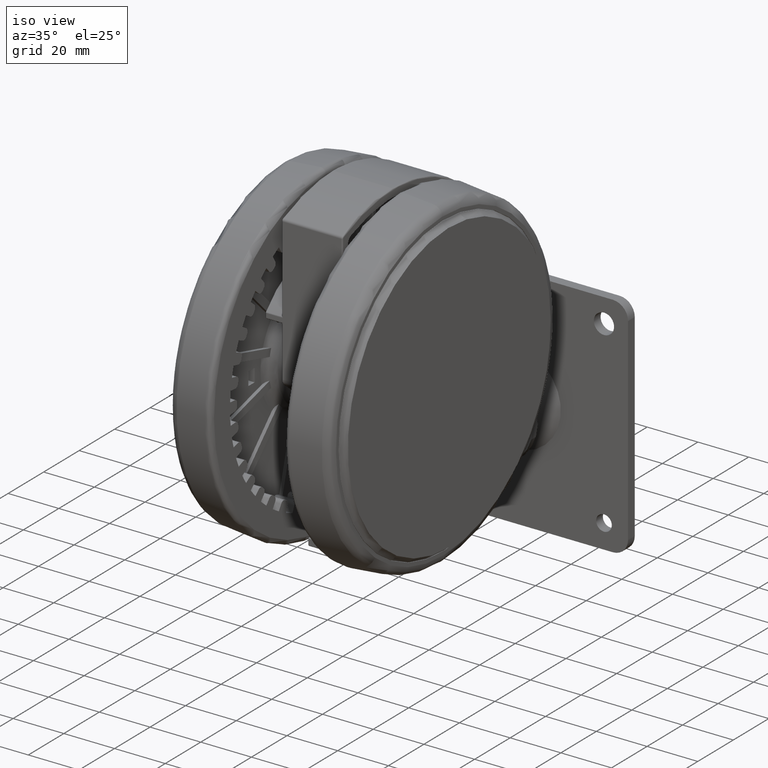
[diagram: clean part render]
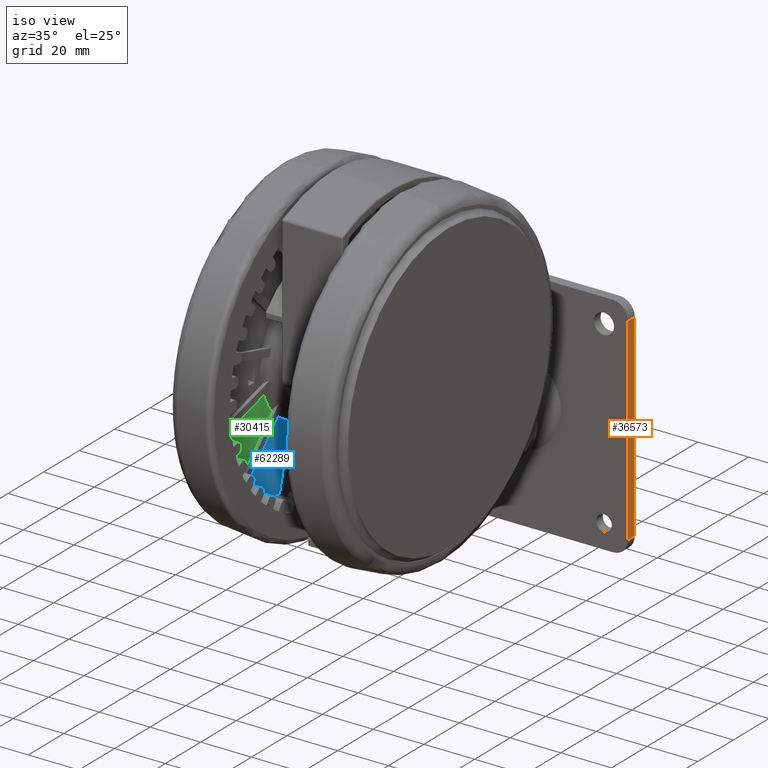
[diagram: same view with three faces highlighted in distinct colors, each labeled with its STEP entity id]
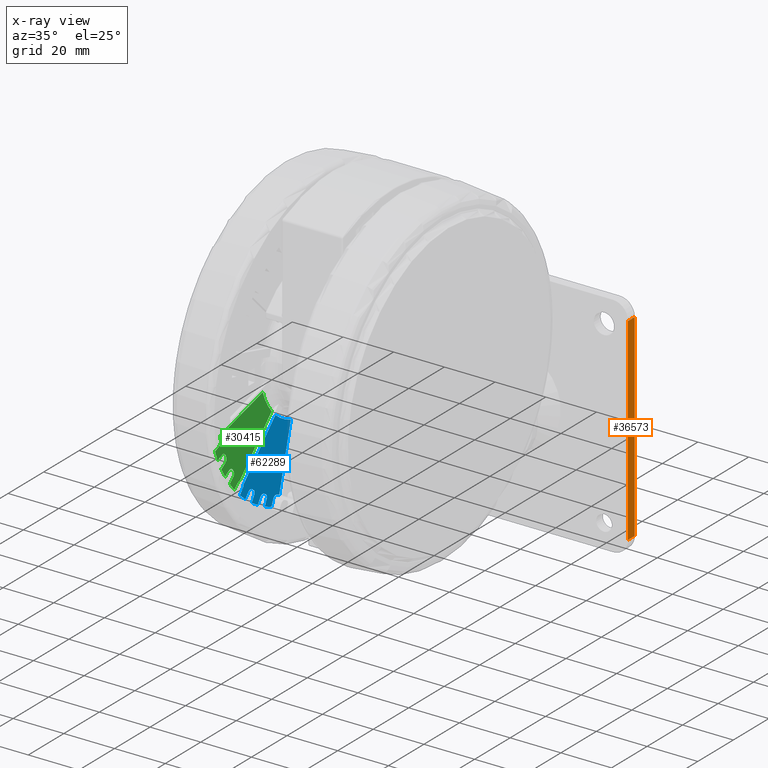
[diagram: x-ray of the same camera — body ghosted, the three highlighted faces saturated]
A machine part, iso view with three faces highlighted in distinct colors.
The next image is the same camera in x-ray (body ghosted, the three faces saturated) — at least one of them is partly hidden behind the body in this view.
Their STEP definitions:

[orange] entity #36573 — the highlighted planar face has unit normal (-1, -0, 0).
#286 = EDGE_CURVE ( 'NONE', #27098, #43286, #34364, .T. ) ;
#782 = VECTOR ( 'NONE', #39262, 1000.000000000000100 ) ;
#1361 = AXIS2_PLACEMENT_3D ( 'NONE', #71579, #54462, #19972 ) ;
#5215 = VERTEX_POINT ( 'NONE', #60357 ) ;
#5363 = VERTEX_POINT ( 'NONE', #16297 ) ;
#6182 = FACE_OUTER_BOUND ( 'NONE', #28658, .T. ) ;
#6326 = EDGE_CURVE ( 'NONE', #43286, #5363, #41390, .T. ) ;
#8152 = PLANE ( 'NONE',  #1361 ) ;
#16093 = LINE ( 'NONE', #50624, #782 ) ;
#16297 = CARTESIAN_POINT ( 'NONE',  ( 6.952468410054590800, 88.93066503185036700, 10.89999999999997900 ) ) ;
#18507 = ORIENTED_EDGE ( 'NONE', *, *, #286, .T. ) ;
#19103 = VECTOR ( 'NONE', #68781, 1000.000000000000100 ) ;
#19734 = CARTESIAN_POINT ( 'NONE',  ( 84.94799836694933500, 88.09561608530134400, 10.89999999999997200 ) ) ;
#19972 = DIRECTION ( 'NONE',  ( 0.9999426917550609000, -0.01070575572498725000, -4.625929269271453700E-017 ) ) ;
#25689 = ORIENTED_EDGE ( 'NONE', *, *, #26627, .T. ) ;
#26071 = CARTESIAN_POINT ( 'NONE',  ( 6.911786538299637100, 85.13088280318112300, 10.89999999999997900 ) ) ;
#26627 = EDGE_CURVE ( 'NONE', #5363, #5215, #68695, .T. ) ;
#27098 = VERTEX_POINT ( 'NONE', #64806 ) ;
#28658 = EDGE_LOOP ( 'NONE', ( #42987, #25689, #74209, #18507 ) ) ;
#34364 = LINE ( 'NONE', #64776, #19103 ) ;
#36498 = CARTESIAN_POINT ( 'NONE',  ( 90.94765451747970500, 88.03138155095142300, 10.89999999999997200 ) ) ;
#36573 = ADVANCED_FACE ( 'NONE', ( #6182 ), #8152, .F. ) ;
#39262 = DIRECTION ( 'NONE',  ( -0.9999426917550609000, 0.01070575572498725000, 4.625929269271453700E-017 ) ) ;
#41390 = LINE ( 'NONE', #36498, #53117 ) ;
#42987 = ORIENTED_EDGE ( 'NONE', *, *, #6326, .T. ) ;
#43286 = VERTEX_POINT ( 'NONE', #19734 ) ;
#50046 = EDGE_CURVE ( 'NONE', #27098, #5215, #16093, .T. ) ;
#50624 = CARTESIAN_POINT ( 'NONE',  ( 90.90697264572475000, 84.23159932228219300, 10.89999999999997200 ) ) ;
#53117 = VECTOR ( 'NONE', #71044, 1000.000000000000100 ) ;
#54462 = DIRECTION ( 'NONE',  ( -4.625664165383856100E-017, 4.952406875456049100E-019, -1.000000000000000000 ) ) ;
#57026 = VECTOR ( 'NONE', #66382, 1000.000000000000100 ) ;
#60357 = CARTESIAN_POINT ( 'NONE',  ( 6.911786538299637100, 85.13088280318112300, 10.89999999999997900 ) ) ;
#64776 = CARTESIAN_POINT ( 'NONE',  ( 84.90731649519436500, 84.29583385663212900, 10.89999999999997200 ) ) ;
#64806 = CARTESIAN_POINT ( 'NONE',  ( 84.90731649519436500, 84.29583385663212900, 10.89999999999997200 ) ) ;
#66382 = DIRECTION ( 'NONE',  ( -0.01070575572498725000, -0.9999426917550609000, 3.328655038799715100E-029 ) ) ;
#68695 = LINE ( 'NONE', #26071, #57026 ) ;
#68781 = DIRECTION ( 'NONE',  ( 0.01070575572498725000, 0.9999426917550609000, -3.328655038799715100E-029 ) ) ;
#71044 = DIRECTION ( 'NONE',  ( -0.9999426917550609000, 0.01070575572498725000, 4.625929269271453700E-017 ) ) ;
#71579 = CARTESIAN_POINT ( 'NONE',  ( 90.90697264572475000, 84.23159932228219300, 10.89999999999997200 ) ) ;
#74209 = ORIENTED_EDGE ( 'NONE', *, *, #50046, .F. ) ;

[blue] entity #62289 — the highlighted planar face has unit normal (1, 0, 0).
#163 = DIRECTION ( 'NONE',  ( 0.9999426917550609000, -0.01070575572499100200, 0.0000000000000000000 ) ) ;
#306 = ORIENTED_EDGE ( 'NONE', *, *, #72035, .T. ) ;
#707 = DIRECTION ( 'NONE',  ( -0.0000000000000000000, -0.0000000000000000000, -1.000000000000000000 ) ) ;
#1459 = CARTESIAN_POINT ( 'NONE',  ( 48.84620066545806300, -23.02278611614584100, -56.90000000000011900 ) ) ;
#1890 = EDGE_CURVE ( 'NONE', #68530, #37772, #17113, .T. ) ;
#2465 = VERTEX_POINT ( 'NONE', #73307 ) ;
#2631 = CIRCLE ( 'NONE', #37899, 54.00000000000000000 ) ;
#2968 = VERTEX_POINT ( 'NONE', #51052 ) ;
#3286 = AXIS2_PLACEMENT_3D ( 'NONE', #56391, #21908, #62167 ) ;
#3471 = DIRECTION ( 'NONE',  ( 0.0000000000000000000, 0.0000000000000000000, -1.000000000000000000 ) ) ;
#3654 = ORIENTED_EDGE ( 'NONE', *, *, #51852, .T. ) ;
#3691 = CIRCLE ( 'NONE', #54336, 49.99999999999999300 ) ;
#4177 = VERTEX_POINT ( 'NONE', #60255 ) ;
#4685 = EDGE_CURVE ( 'NONE', #68530, #37838, #67140, .T. ) ;
#4938 = ORIENTED_EDGE ( 'NONE', *, *, #23909, .T. ) ;
#5219 = DIRECTION ( 'NONE',  ( -0.8469975590422029700, 0.5315967785611100900, 0.0000000000000000000 ) ) ;
#5726 = LINE ( 'NONE', #57415, #49809 ) ;
#5797 = VERTEX_POINT ( 'NONE', #54966 ) ;
#6120 = CARTESIAN_POINT ( 'NONE',  ( 44.58273963028253900, -25.61989809105147800, -56.90000000000011900 ) ) ;
#6327 = VERTEX_POINT ( 'NONE', #30728 ) ;
#6646 = EDGE_CURVE ( 'NONE', #22519, #14195, #21566, .T. ) ;
#6715 = EDGE_CURVE ( 'NONE', #33346, #2968, #2631, .T. ) ;
#7138 = AXIS2_PLACEMENT_3D ( 'NONE', #16664, #56934, #22416 ) ;
#7662 = VECTOR ( 'NONE', #5219, 1000.000000000000000 ) ;
#8618 = DIRECTION ( 'NONE',  ( -0.0000000000000000000, -0.0000000000000000000, -1.000000000000000000 ) ) ;
#9636 = ORIENTED_EDGE ( 'NONE', *, *, #1890, .F. ) ;
#9855 = CARTESIAN_POINT ( 'NONE',  ( 48.63051567194305800, -16.95060310080122100, -56.90000000000011900 ) ) ;
#9870 = DIRECTION ( 'NONE',  ( 0.0000000000000000000, 0.0000000000000000000, 1.000000000000000000 ) ) ;
#10102 = CARTESIAN_POINT ( 'NONE',  ( 44.64326564982847900, -30.38056668528161500, -56.90000000000011900 ) ) ;
#10158 = CIRCLE ( 'NONE', #34891, 1.499999999999998000 ) ;
#10468 = VERTEX_POINT ( 'NONE', #10102 ) ;
#10838 = EDGE_CURVE ( 'NONE', #33346, #2465, #34517, .T. ) ;
#10997 = CARTESIAN_POINT ( 'NONE',  ( 44.64326564982842200, -30.38056668528161500, -56.90000000000011900 ) ) ;
#11648 = DIRECTION ( 'NONE',  ( -0.0000000000000000000, -0.0000000000000000000, -1.000000000000000000 ) ) ;
#12472 = VERTEX_POINT ( 'NONE', #43461 ) ;
#13095 = CARTESIAN_POINT ( 'NONE',  ( 45.88261040407268600, -23.38880207509736700, -56.90000000000011900 ) ) ;
#13151 = AXIS2_PLACEMENT_3D ( 'NONE', #53372, #18882, #59174 ) ;
#13419 = CARTESIAN_POINT ( 'NONE',  ( 36.28402202614784500, -34.92782958026784000, -56.90000000000011900 ) ) ;
#13631 = CARTESIAN_POINT ( 'NONE',  ( 45.38013479812423200, -24.34940175248816300, -56.90000000000011900 ) ) ;
#13669 = VERTEX_POINT ( 'NONE', #69443 ) ;
#14163 = DIRECTION ( 'NONE',  ( -0.0000000000000000000, -0.0000000000000000000, -1.000000000000000000 ) ) ;
#14195 = VERTEX_POINT ( 'NONE', #64316 ) ;
#14595 = VERTEX_POINT ( 'NONE', #28709 ) ;
#15496 = CARTESIAN_POINT ( 'NONE',  ( -4.163336342344337000E-014, 2.081668171172168500E-014, -56.90000000000011900 ) ) ;
#15653 = DIRECTION ( 'NONE',  ( 0.9999426917550610100, -0.01070575572498697600, 0.0000000000000000000 ) ) ;
#15796 = ORIENTED_EDGE ( 'NONE', *, *, #66146, .T. ) ;
#16558 = DIRECTION ( 'NONE',  ( -0.0000000000000000000, -0.0000000000000000000, -1.000000000000000000 ) ) ;
#16664 = CARTESIAN_POINT ( 'NONE',  ( 48.97653407272143500, -15.92322549685057700, -56.90000000000011900 ) ) ;
#17113 = LINE ( 'NONE', #66829, #32333 ) ;
#17644 = CARTESIAN_POINT ( 'NONE',  ( -4.163336342344337000E-014, 2.081668171172168500E-014, -56.90000000000011900 ) ) ;
#18094 = CARTESIAN_POINT ( 'NONE',  ( 47.13060163431046600, -16.93454446721373300, -56.90000000000011900 ) ) ;
#18363 = ORIENTED_EDGE ( 'NONE', *, *, #43150, .F. ) ;
#18743 = EDGE_CURVE ( 'NONE', #10468, #37772, #45307, .T. ) ;
#18831 = DIRECTION ( 'NONE',  ( 0.9999426917550610100, -0.01070575572499391500, 0.0000000000000000000 ) ) ;
#18882 = DIRECTION ( 'NONE',  ( -0.0000000000000000000, -0.0000000000000000000, -1.000000000000000000 ) ) ;
#19260 = VECTOR ( 'NONE', #46305, 1000.000000000000100 ) ;
#19382 = DIRECTION ( 'NONE',  ( 0.9999426917550610100, -0.01070575572499391500, 0.0000000000000000000 ) ) ;
#20525 = DIRECTION ( 'NONE',  ( 0.0000000000000000000, 0.0000000000000000000, -1.000000000000000000 ) ) ;
#20655 = EDGE_CURVE ( 'NONE', #14595, #2968, #67583, .T. ) ;
#21278 = DIRECTION ( 'NONE',  ( 0.3191810638974513200, 0.9476937524587208900, 0.0000000000000000000 ) ) ;
#21566 = CIRCLE ( 'NONE', #7138, 1.499999999999998000 ) ;
#21908 = DIRECTION ( 'NONE',  ( -0.0000000000000000000, -0.0000000000000000000, -1.000000000000000000 ) ) ;
#22416 = DIRECTION ( 'NONE',  ( 0.9999426917550610100, -0.01070575572499160200, 0.0000000000000000000 ) ) ;
#22519 = VERTEX_POINT ( 'NONE', #68407 ) ;
#23197 = AXIS2_PLACEMENT_3D ( 'NONE', #69100, #34554, #163 ) ;
#23368 = CARTESIAN_POINT ( 'NONE',  ( 46.47143889913804300, -22.00920756822257800, -56.90000000000011900 ) ) ;
#23392 = DIRECTION ( 'NONE',  ( 0.9999426917550609000, -0.01070575572499100200, 0.0000000000000000000 ) ) ;
#23481 = EDGE_CURVE ( 'NONE', #22519, #6327, #57454, .T. ) ;
#23843 = DIRECTION ( 'NONE',  ( 0.9999426917550609000, -0.01070575572499099900, 0.0000000000000000000 ) ) ;
#23896 = LINE ( 'NONE', #1459, #52748 ) ;
#23909 = EDGE_CURVE ( 'NONE', #52522, #2465, #33880, .T. ) ;
#24258 = ORIENTED_EDGE ( 'NONE', *, *, #55170, .F. ) ;
#24834 = EDGE_CURVE ( 'NONE', #26697, #56579, #23896, .T. ) ;
#25263 = AXIS2_PLACEMENT_3D ( 'NONE', #29357, #58367, #23843 ) ;
#25297 = ORIENTED_EDGE ( 'NONE', *, *, #28981, .T. ) ;
#26510 = DIRECTION ( 'NONE',  ( 0.8469975590422098600, -0.5315967785610991000, -0.0000000000000000000 ) ) ;
#26697 = VERTEX_POINT ( 'NONE', #43925 ) ;
#26835 = EDGE_CURVE ( 'NONE', #13669, #50843, #10158, .T. ) ;
#26986 = CARTESIAN_POINT ( 'NONE',  ( -0.4042561540613503500, -1.446575968105457700, -56.90000000000011900 ) ) ;
#28025 = CARTESIAN_POINT ( 'NONE',  ( 44.54622369327445600, -22.70757483019162500, -56.90000000000011900 ) ) ;
#28304 = VERTEX_POINT ( 'NONE', #63750 ) ;
#28709 = CARTESIAN_POINT ( 'NONE',  ( 40.02601707235996300, -32.27875165585830800, -56.90000000000011900 ) ) ;
#28981 = EDGE_CURVE ( 'NONE', #41379, #56579, #58179, .T. ) ;
#29357 = CARTESIAN_POINT ( 'NONE',  ( -4.163336342344337000E-014, 2.081668171172168500E-014, -56.90000000000011900 ) ) ;
#30374 = AXIS2_PLACEMENT_3D ( 'NONE', #55012, #20525, #60812 ) ;
#30728 = CARTESIAN_POINT ( 'NONE',  ( 47.21409288538163200, -16.45689621437015400, -56.90000000000011900 ) ) ;
#31572 = CIRCLE ( 'NONE', #56054, 1.499999999999998000 ) ;
#31703 = EDGE_CURVE ( 'NONE', #47204, #44303, #31572, .T. ) ;
#32333 = VECTOR ( 'NONE', #26510, 1000.000000000000000 ) ;
#32763 = DIRECTION ( 'NONE',  ( -0.9630996173013801600, 0.2691451785819972700, 0.0000000000000000000 ) ) ;
#33346 = VERTEX_POINT ( 'NONE', #46813 ) ;
#33699 = CIRCLE ( 'NONE', #30374, 49.99999999999999300 ) ;
#33880 = CIRCLE ( 'NONE', #72894, 1.499999999999998000 ) ;
#34517 = LINE ( 'NONE', #57956, #19260 ) ;
#34554 = DIRECTION ( 'NONE',  ( 0.0000000000000000000, 0.0000000000000000000, 1.000000000000000000 ) ) ;
#34891 = AXIS2_PLACEMENT_3D ( 'NONE', #51005, #16558, #56836 ) ;
#34931 = ORIENTED_EDGE ( 'NONE', *, *, #18743, .T. ) ;
#35097 = CARTESIAN_POINT ( 'NONE',  ( 45.38013479812423200, -24.34940175248816300, -56.90000000000011900 ) ) ;
#35276 = VERTEX_POINT ( 'NONE', #38290 ) ;
#37410 = AXIS2_PLACEMENT_3D ( 'NONE', #13095, #53336, #18831 ) ;
#37772 = VERTEX_POINT ( 'NONE', #73621 ) ;
#37838 = VERTEX_POINT ( 'NONE', #62548 ) ;
#37856 = CARTESIAN_POINT ( 'NONE',  ( -4.163336342344337000E-014, 2.081668171172168500E-014, -56.90000000000011900 ) ) ;
#37899 = AXIS2_PLACEMENT_3D ( 'NONE', #17644, #57931, #23392 ) ;
#38207 = LINE ( 'NONE', #10997, #7662 ) ;
#38290 = CARTESIAN_POINT ( 'NONE',  ( 18.52650701286523100, -16.78596252534404000, -56.90000000000011900 ) ) ;
#39562 = EDGE_CURVE ( 'NONE', #41379, #5797, #33699, .T. ) ;
#39574 = CARTESIAN_POINT ( 'NONE',  ( 42.45629975946371100, -29.00797238470815400, -56.90000000000011900 ) ) ;
#39717 = VECTOR ( 'NONE', #32763, 1000.000000000000000 ) ;
#40473 = EDGE_CURVE ( 'NONE', #14595, #4177, #52557, .T. ) ;
#40609 = LINE ( 'NONE', #52754, #52340 ) ;
#40941 = DIRECTION ( 'NONE',  ( 0.9999426917550610100, -0.01070575572498234900, 0.0000000000000000000 ) ) ;
#41087 = AXIS2_PLACEMENT_3D ( 'NONE', #9855, #50086, #15653 ) ;
#41379 = VERTEX_POINT ( 'NONE', #28025 ) ;
#41668 = DIRECTION ( 'NONE',  ( -0.9197296712498428400, 0.3925523300435956300, 0.0000000000000000000 ) ) ;
#43027 = CARTESIAN_POINT ( 'NONE',  ( 48.63051567194305800, -16.95060310080122100, -56.90000000000011900 ) ) ;
#43150 = EDGE_CURVE ( 'NONE', #52522, #35276, #40609, .T. ) ;
#43212 = ORIENTED_EDGE ( 'NONE', *, *, #31703, .T. ) ;
#43421 = ORIENTED_EDGE ( 'NONE', *, *, #60776, .T. ) ;
#43461 = CARTESIAN_POINT ( 'NONE',  ( 23.62973984113865100, -8.163050596443827800, -56.90000000000011900 ) ) ;
#43661 = DIRECTION ( 'NONE',  ( 0.5964127056703998300, 0.8026779457010843100, 0.0000000000000000000 ) ) ;
#43925 = CARTESIAN_POINT ( 'NONE',  ( 48.84620066545806300, -23.02278611614589100, -56.90000000000011900 ) ) ;
#44286 = CARTESIAN_POINT ( 'NONE',  ( -4.163336342344337000E-014, 2.081668171172168500E-014, -56.90000000000011900 ) ) ;
#44291 = CIRCLE ( 'NONE', #66647, 1.499999999999998000 ) ;
#44303 = VERTEX_POINT ( 'NONE', #18094 ) ;
#45307 = CIRCLE ( 'NONE', #57088, 54.00000000000000000 ) ;
#45314 = FACE_OUTER_BOUND ( 'NONE', #74414, .T. ) ;
#45535 = DIRECTION ( 'NONE',  ( 0.9197296712498480600, -0.3925523300435832500, -0.0000000000000000000 ) ) ;
#46072 = CARTESIAN_POINT ( 'NONE',  ( 41.01234439754282600, -31.14863732199749400, -56.90000000000011900 ) ) ;
#46305 = DIRECTION ( 'NONE',  ( -0.7534095559072079300, 0.6575515501218925900, 0.0000000000000000000 ) ) ;
#46562 = ORIENTED_EDGE ( 'NONE', *, *, #6715, .T. ) ;
#46813 = CARTESIAN_POINT ( 'NONE',  ( 39.34106527139584100, -36.99027687530556100, -56.90000000000011900 ) ) ;
#47204 = VERTEX_POINT ( 'NONE', #60163 ) ;
#48597 = CARTESIAN_POINT ( 'NONE',  ( 36.40941829014796100, -36.42257898300224600, -56.90000000000011900 ) ) ;
#48862 = DIRECTION ( 'NONE',  ( 0.9999426917550610100, -0.01070575572498928800, 0.0000000000000000000 ) ) ;
#48937 = EDGE_CURVE ( 'NONE', #12472, #35276, #52266, .T. ) ;
#49809 = VECTOR ( 'NONE', #45535, 1000.000000000000200 ) ;
#49931 = CIRCLE ( 'NONE', #50779, 1.499999999999998000 ) ;
#50086 = DIRECTION ( 'NONE',  ( -0.0000000000000000000, -0.0000000000000000000, -1.000000000000000000 ) ) ;
#50100 = DIRECTION ( 'NONE',  ( 0.9999426917550609000, -0.01070575572499100200, 0.0000000000000000000 ) ) ;
#50779 = AXIS2_PLACEMENT_3D ( 'NONE', #35097, #707, #40941 ) ;
#50843 = VERTEX_POINT ( 'NONE', #39574 ) ;
#51005 = CARTESIAN_POINT ( 'NONE',  ( 41.65890459162200400, -30.27846872327147000, -56.90000000000011900 ) ) ;
#51052 = CARTESIAN_POINT ( 'NONE',  ( 41.97133672842507900, -33.97656388202243200, -56.90000000000011900 ) ) ;
#51852 = EDGE_CURVE ( 'NONE', #26697, #57517, #59070, .T. ) ;
#51888 = DIRECTION ( 'NONE',  ( 0.9999426917550610100, -0.01070575572499160200, 0.0000000000000000000 ) ) ;
#52255 = ORIENTED_EDGE ( 'NONE', *, *, #40473, .T. ) ;
#52266 = CIRCLE ( 'NONE', #3286, 25.00000000000000400 ) ;
#52287 = VECTOR ( 'NONE', #52862, 1000.000000000000100 ) ;
#52340 = VECTOR ( 'NONE', #64320, 1000.000000000000200 ) ;
#52522 = VERTEX_POINT ( 'NONE', #13419 ) ;
#52557 = CIRCLE ( 'NONE', #13151, 1.499999999999998000 ) ;
#52560 = PLANE ( 'NONE',  #25263 ) ;
#52748 = VECTOR ( 'NONE', #41668, 1000.000000000000100 ) ;
#52754 = CARTESIAN_POINT ( 'NONE',  ( 1.070525028720327800, 1.047844977148462400, -56.90000000000011900 ) ) ;
#52862 = DIRECTION ( 'NONE',  ( 0.7534095559072170300, -0.6575515501218820400, -0.0000000000000000000 ) ) ;
#53248 = ORIENTED_EDGE ( 'NONE', *, *, #20655, .F. ) ;
#53336 = DIRECTION ( 'NONE',  ( -0.0000000000000000000, -0.0000000000000000000, -1.000000000000000000 ) ) ;
#53372 = CARTESIAN_POINT ( 'NONE',  ( 41.01234439754282600, -31.14863732199749400, -56.90000000000011900 ) ) ;
#53864 = DIRECTION ( 'NONE',  ( -0.0000000000000000000, -0.0000000000000000000, -1.000000000000000000 ) ) ;
#54297 = ORIENTED_EDGE ( 'NONE', *, *, #4685, .T. ) ;
#54336 = AXIS2_PLACEMENT_3D ( 'NONE', #37856, #3471, #43661 ) ;
#54422 = DIRECTION ( 'NONE',  ( 0.9999426917550610100, -0.01070575572499160200, 0.0000000000000000000 ) ) ;
#54966 = CARTESIAN_POINT ( 'NONE',  ( 44.05838329914968200, -23.64019587620207800, -56.90000000000011900 ) ) ;
#55012 = CARTESIAN_POINT ( 'NONE',  ( -4.163336342344337000E-014, 2.081668171172168500E-014, -56.90000000000011900 ) ) ;
#55078 = LINE ( 'NONE', #26986, #39717 ) ;
#55170 = EDGE_CURVE ( 'NONE', #13669, #28304, #3691, .T. ) ;
#55755 = DIRECTION ( 'NONE',  ( 0.0000000000000000000, 0.0000000000000000000, -1.000000000000000000 ) ) ;
#56054 = AXIS2_PLACEMENT_3D ( 'NONE', #43027, #8618, #48862 ) ;
#56390 = ORIENTED_EDGE ( 'NONE', *, *, #10838, .F. ) ;
#56391 = CARTESIAN_POINT ( 'NONE',  ( -4.163336342344337000E-014, 2.081668171172168500E-014, -56.90000000000011900 ) ) ;
#56497 = ORIENTED_EDGE ( 'NONE', *, *, #70364, .F. ) ;
#56579 = VERTEX_POINT ( 'NONE', #23368 ) ;
#56754 = CARTESIAN_POINT ( 'NONE',  ( 50.41644894319770000, -19.34377615559925400, -56.90000000000011900 ) ) ;
#56836 = DIRECTION ( 'NONE',  ( 0.9999426917550610100, -0.01070575572499854100, 0.0000000000000000000 ) ) ;
#56934 = DIRECTION ( 'NONE',  ( -0.0000000000000000000, -0.0000000000000000000, -1.000000000000000000 ) ) ;
#57088 = AXIS2_PLACEMENT_3D ( 'NONE', #44286, #9870, #50100 ) ;
#57415 = CARTESIAN_POINT ( 'NONE',  ( 50.41644894319780700, -19.34377615559925800, -56.90000000000011900 ) ) ;
#57454 = CIRCLE ( 'NONE', #60334, 50.00000000000002800 ) ;
#57517 = VERTEX_POINT ( 'NONE', #56754 ) ;
#57931 = DIRECTION ( 'NONE',  ( 0.0000000000000000000, 0.0000000000000000000, 1.000000000000000000 ) ) ;
#57956 = CARTESIAN_POINT ( 'NONE',  ( 39.34106527139584100, -36.99027687530556100, -56.90000000000011900 ) ) ;
#58179 = CIRCLE ( 'NONE', #37410, 1.499999999999998000 ) ;
#58261 = ORIENTED_EDGE ( 'NONE', *, *, #24834, .F. ) ;
#58367 = DIRECTION ( 'NONE',  ( 0.0000000000000000000, 0.0000000000000000000, 1.000000000000000000 ) ) ;
#58383 = ORIENTED_EDGE ( 'NONE', *, *, #23481, .F. ) ;
#58605 = ORIENTED_EDGE ( 'NONE', *, *, #26835, .T. ) ;
#58669 = CARTESIAN_POINT ( 'NONE',  ( 41.97133672842507900, -33.97656388202243200, -56.90000000000011900 ) ) ;
#59070 = CIRCLE ( 'NONE', #23197, 54.00000000000000000 ) ;
#59174 = DIRECTION ( 'NONE',  ( 0.9999426917550610100, -0.01070575572498234900, 0.0000000000000000000 ) ) ;
#59791 = ORIENTED_EDGE ( 'NONE', *, *, #48937, .T. ) ;
#60047 = AXIS2_PLACEMENT_3D ( 'NONE', #13631, #53864, #19382 ) ;
#60163 = CARTESIAN_POINT ( 'NONE',  ( 48.04168717687768700, -18.33019760767599800, -56.90000000000011900 ) ) ;
#60255 = CARTESIAN_POINT ( 'NONE',  ( 39.51243035991023300, -31.13257868841000700, -56.90000000000011900 ) ) ;
#60334 = AXIS2_PLACEMENT_3D ( 'NONE', #15496, #55755, #21278 ) ;
#60776 = EDGE_CURVE ( 'NONE', #37838, #5797, #49931, .T. ) ;
#60812 = DIRECTION ( 'NONE',  ( 0.4635033805381129600, 0.8860951507765636400, 0.0000000000000000000 ) ) ;
#62167 = DIRECTION ( 'NONE',  ( 0.9999426917550609000, -0.01070575572499099900, 0.0000000000000000000 ) ) ;
#62289 = ADVANCED_FACE ( 'NONE', ( #45314 ), #52560, .T. ) ;
#62548 = CARTESIAN_POINT ( 'NONE',  ( 43.88022076049163900, -24.33334311890067500, -56.90000000000011900 ) ) ;
#63750 = CARTESIAN_POINT ( 'NONE',  ( 39.81781009470177700, -30.24139545825001100, -56.90000000000011900 ) ) ;
#64316 = CARTESIAN_POINT ( 'NONE',  ( 47.85087072525260500, -14.93182142778224600, -56.90000000000011900 ) ) ;
#64320 = DIRECTION ( 'NONE',  ( -0.6994961456670664200, 0.7146363706087999200, 0.0000000000000000000 ) ) ;
#66146 = EDGE_CURVE ( 'NONE', #14195, #12472, #55078, .T. ) ;
#66647 = AXIS2_PLACEMENT_3D ( 'NONE', #46072, #11648, #51888 ) ;
#66829 = CARTESIAN_POINT ( 'NONE',  ( 46.76970552064736400, -26.99249239162489300, -56.90000000000011900 ) ) ;
#67140 = CIRCLE ( 'NONE', #60047, 1.499999999999998000 ) ;
#67384 = EDGE_CURVE ( 'NONE', #44303, #6327, #69309, .T. ) ;
#67583 = LINE ( 'NONE', #58669, #52287 ) ;
#68407 = CARTESIAN_POINT ( 'NONE',  ( 47.55003308031211200, -15.45944222995201900, -56.90000000000011900 ) ) ;
#68530 = VERTEX_POINT ( 'NONE', #6120 ) ;
#68813 = ORIENTED_EDGE ( 'NONE', *, *, #71470, .F. ) ;
#69100 = CARTESIAN_POINT ( 'NONE',  ( -4.163336342344337000E-014, 2.081668171172168500E-014, -56.90000000000011900 ) ) ;
#69248 = ORIENTED_EDGE ( 'NONE', *, *, #67384, .T. ) ;
#69309 = CIRCLE ( 'NONE', #41087, 1.499999999999998000 ) ;
#69310 = ORIENTED_EDGE ( 'NONE', *, *, #6646, .T. ) ;
#69443 = CARTESIAN_POINT ( 'NONE',  ( 40.44553843846800600, -29.39657157599170000, -56.90000000000011900 ) ) ;
#70364 = EDGE_CURVE ( 'NONE', #10468, #50843, #38207, .T. ) ;
#71470 = EDGE_CURVE ( 'NONE', #47204, #57517, #5726, .T. ) ;
#72035 = EDGE_CURVE ( 'NONE', #4177, #28304, #44291, .T. ) ;
#72894 = AXIS2_PLACEMENT_3D ( 'NONE', #48597, #14163, #54422 ) ;
#73041 = ORIENTED_EDGE ( 'NONE', *, *, #39562, .F. ) ;
#73307 = CARTESIAN_POINT ( 'NONE',  ( 37.39574561533083100, -35.29246464914143600, -56.90000000000011900 ) ) ;
#73621 = CARTESIAN_POINT ( 'NONE',  ( 46.76970552064736400, -26.99249239162489300, -56.90000000000011900 ) ) ;
#74414 = EDGE_LOOP ( 'NONE', ( #68813, #43212, #69248, #58383, #69310, #15796, #59791, #18363, #4938, #56390, #46562, #53248, #52255, #306, #24258, #58605, #56497, #34931, #9636, #54297, #43421, #73041, #25297, #58261, #3654 ) ) ;

[green] entity #30415 — the highlighted planar face has unit normal (1, 0, 0).
#228 = CARTESIAN_POINT ( 'NONE',  ( 25.98495230324989400, -47.33690160749670600, -56.90000000000011900 ) ) ;
#477 = ORIENTED_EDGE ( 'NONE', *, *, #12291, .T. ) ;
#1204 = CARTESIAN_POINT ( 'NONE',  ( 1.451024358833086700, 0.3721978550783003300, -56.90000000000011900 ) ) ;
#1259 = EDGE_CURVE ( 'NONE', #66709, #64289, #26135, .T. ) ;
#1511 = CIRCLE ( 'NONE', #27476, 1.500000000000001300 ) ;
#1553 = CARTESIAN_POINT ( 'NONE',  ( 22.40108100645126000, -46.37285380200799500, -56.90000000000011900 ) ) ;
#1561 = ORIENTED_EDGE ( 'NONE', *, *, #66284, .F. ) ;
#2757 = CARTESIAN_POINT ( 'NONE',  ( 14.43783878630401100, -47.87012441158569900, -56.90000000000011900 ) ) ;
#2893 = EDGE_CURVE ( 'NONE', #67061, #46464, #62884, .T. ) ;
#3646 = VECTOR ( 'NONE', #56403, 1000.000000000000100 ) ;
#4066 = DIRECTION ( 'NONE',  ( 0.9999426917550606800, -0.01070575572501010100, 0.0000000000000000000 ) ) ;
#4072 = ORIENTED_EDGE ( 'NONE', *, *, #1259, .T. ) ;
#4303 = CARTESIAN_POINT ( 'NONE',  ( 35.63469396572644900, -37.18089006423881700, -56.90000000000011900 ) ) ;
#4310 = DIRECTION ( 'NONE',  ( 0.9999426917550610100, -0.01070575572499157600, 0.0000000000000000000 ) ) ;
#4412 = CARTESIAN_POINT ( 'NONE',  ( -4.163336342344337000E-014, 2.081668171172168500E-014, -56.90000000000011900 ) ) ;
#4878 = ORIENTED_EDGE ( 'NONE', *, *, #72584, .T. ) ;
#5572 = CIRCLE ( 'NONE', #56214, 1.500000000000001600 ) ;
#5700 = DIRECTION ( 'NONE',  ( 0.0000000000000000000, 0.0000000000000000000, -1.000000000000000000 ) ) ;
#5771 = DIRECTION ( 'NONE',  ( 0.9999426917550610100, -0.01070575572499157600, 0.0000000000000000000 ) ) ;
#5989 = VECTOR ( 'NONE', #17003, 1000.000000000000100 ) ;
#6009 = DIRECTION ( 'NONE',  ( -0.5133404639193328600, 0.8581850430432146300, 0.0000000000000000000 ) ) ;
#6218 = CARTESIAN_POINT ( 'NONE',  ( 28.52388262495638600, -41.06565621048452600, -56.90000000000011900 ) ) ;
#6775 = AXIS2_PLACEMENT_3D ( 'NONE', #73250, #38699, #4310 ) ;
#7347 = DIRECTION ( 'NONE',  ( 0.9999426917550610100, -0.01070575572498232500, 0.0000000000000000000 ) ) ;
#7763 = AXIS2_PLACEMENT_3D ( 'NONE', #43955, #9557, #49800 ) ;
#9203 = VECTOR ( 'NONE', #29802, 1000.000000000000100 ) ;
#9557 = DIRECTION ( 'NONE',  ( 0.0000000000000000000, 0.0000000000000000000, 1.000000000000000000 ) ) ;
#9881 = VERTEX_POINT ( 'NONE', #49163 ) ;
#10082 = DIRECTION ( 'NONE',  ( 0.9999426917550610100, -0.01070575572498234900, 0.0000000000000000000 ) ) ;
#10202 = DIRECTION ( 'NONE',  ( 0.9999426917550609000, -0.01070575572499100200, 0.0000000000000000000 ) ) ;
#10551 = CARTESIAN_POINT ( 'NONE',  ( 15.44225670303763600, -47.55561699649667400, -56.90000000000011900 ) ) ;
#10565 = AXIS2_PLACEMENT_3D ( 'NONE', #72994, #38455, #4066 ) ;
#10828 = CARTESIAN_POINT ( 'NONE',  ( 13.90050410321197400, -48.16246755854722000, -56.90000000000011900 ) ) ;
#10877 = EDGE_CURVE ( 'NONE', #46464, #59279, #46248, .T. ) ;
#11060 = VERTEX_POINT ( 'NONE', #2757 ) ;
#12258 = AXIS2_PLACEMENT_3D ( 'NONE', #74708, #40207, #5771 ) ;
#12266 = DIRECTION ( 'NONE',  ( 0.0000000000000000000, 0.0000000000000000000, -1.000000000000000000 ) ) ;
#12291 = EDGE_CURVE ( 'NONE', #74686, #47800, #5572, .T. ) ;
#12633 = CARTESIAN_POINT ( 'NONE',  ( 35.63469396572644900, -37.18089006423881700, -56.90000000000011900 ) ) ;
#12959 = DIRECTION ( 'NONE',  ( -0.0000000000000000000, -0.0000000000000000000, -1.000000000000000000 ) ) ;
#13613 = VERTEX_POINT ( 'NONE', #51575 ) ;
#14599 = CARTESIAN_POINT ( 'NONE',  ( 29.37959910370512500, -42.29762589679904000, -56.90000000000011900 ) ) ;
#14788 = LINE ( 'NONE', #68071, #58926 ) ;
#15026 = EDGE_CURVE ( 'NONE', #44125, #11060, #31392, .T. ) ;
#15522 = AXIS2_PLACEMENT_3D ( 'NONE', #40139, #5700, #45915 ) ;
#15986 = AXIS2_PLACEMENT_3D ( 'NONE', #63258, #28733, #69053 ) ;
#16124 = VERTEX_POINT ( 'NONE', #60672 ) ;
#16433 = VECTOR ( 'NONE', #52007, 1000.000000000000100 ) ;
#16494 = CIRCLE ( 'NONE', #7763, 54.00000000000000000 ) ;
#16728 = EDGE_CURVE ( 'NONE', #50473, #53871, #1511, .T. ) ;
#16888 = EDGE_CURVE ( 'NONE', #58747, #74671, #24857, .T. ) ;
#16903 = AXIS2_PLACEMENT_3D ( 'NONE', #18631, #30171, #70482 ) ;
#16929 = CIRCLE ( 'NONE', #23044, 25.00000000000000400 ) ;
#16931 = ORIENTED_EDGE ( 'NONE', *, *, #2893, .T. ) ;
#16962 = DIRECTION ( 'NONE',  ( 0.0000000000000000000, 0.0000000000000000000, 1.000000000000000000 ) ) ;
#17003 = DIRECTION ( 'NONE',  ( 0.5133404639193447400, -0.8581850430432074200, -0.0000000000000000000 ) ) ;
#18374 = AXIS2_PLACEMENT_3D ( 'NONE', #14599, #54863, #20386 ) ;
#18391 = DIRECTION ( 'NONE',  ( 0.9999426917550603400, -0.01070575572505173300, 0.0000000000000000000 ) ) ;
#18401 = CARTESIAN_POINT ( 'NONE',  ( 33.07015730047152900, -42.68916368496886100, -56.90000000000011900 ) ) ;
#18429 = ORIENTED_EDGE ( 'NONE', *, *, #37357, .F. ) ;
#18501 = ORIENTED_EDGE ( 'NONE', *, *, #26959, .T. ) ;
#18631 = CARTESIAN_POINT ( 'NONE',  ( -4.163336342344337000E-014, 2.081668171172168500E-014, -56.90000000000011900 ) ) ;
#18633 = CARTESIAN_POINT ( 'NONE',  ( 16.38242968902141800, -18.88427910946743200, -56.90000000000011900 ) ) ;
#18645 = VECTOR ( 'NONE', #6009, 1000.000000000000000 ) ;
#18924 = LINE ( 'NONE', #50578, #3646 ) ;
#19556 = VERTEX_POINT ( 'NONE', #58092 ) ;
#19782 = ORIENTED_EDGE ( 'NONE', *, *, #43840, .F. ) ;
#19912 = ORIENTED_EDGE ( 'NONE', *, *, #15026, .T. ) ;
#19949 = DIRECTION ( 'NONE',  ( -0.0000000000000000000, -0.0000000000000000000, -1.000000000000000000 ) ) ;
#20105 = ORIENTED_EDGE ( 'NONE', *, *, #66580, .F. ) ;
#20386 = DIRECTION ( 'NONE',  ( 0.9999426917550610100, -0.01070575572499620300, 0.0000000000000000000 ) ) ;
#21705 = CARTESIAN_POINT ( 'NONE',  ( 21.97169763770150300, -49.32792822445940600, -56.90000000000011900 ) ) ;
#23044 = AXIS2_PLACEMENT_3D ( 'NONE', #63698, #29188, #69498 ) ;
#23130 = VERTEX_POINT ( 'NONE', #69136 ) ;
#24282 = CARTESIAN_POINT ( 'NONE',  ( 34.14243547633583400, -37.02869084991259300, -56.90000000000011900 ) ) ;
#24857 = LINE ( 'NONE', #45655, #5989 ) ;
#26135 = CIRCLE ( 'NONE', #18374, 1.500000000000001600 ) ;
#26759 = DIRECTION ( 'NONE',  ( -0.0000000000000000000, -0.0000000000000000000, -1.000000000000000000 ) ) ;
#26959 = EDGE_CURVE ( 'NONE', #59279, #37080, #62360, .T. ) ;
#27077 = EDGE_CURVE ( 'NONE', #40439, #13613, #56960, .T. ) ;
#27476 = AXIS2_PLACEMENT_3D ( 'NONE', #61333, #26759, #67093 ) ;
#28069 = ORIENTED_EDGE ( 'NONE', *, *, #16888, .F. ) ;
#28159 = CARTESIAN_POINT ( 'NONE',  ( 21.74862233636047600, -45.02218815728930700, -56.90000000000011900 ) ) ;
#28733 = DIRECTION ( 'NONE',  ( 0.0000000000000000000, 0.0000000000000000000, -1.000000000000000000 ) ) ;
#28901 = LINE ( 'NONE', #70998, #40623 ) ;
#28939 = ORIENTED_EDGE ( 'NONE', *, *, #16728, .T. ) ;
#28986 = ORIENTED_EDGE ( 'NONE', *, *, #27077, .F. ) ;
#29188 = DIRECTION ( 'NONE',  ( -0.0000000000000000000, -0.0000000000000000000, -1.000000000000000000 ) ) ;
#29463 = VECTOR ( 'NONE', #52784, 1000.000000000000100 ) ;
#29802 = DIRECTION ( 'NONE',  ( -0.6412701090828167900, 0.7673152202301948300, 0.0000000000000000000 ) ) ;
#30171 = DIRECTION ( 'NONE',  ( 0.0000000000000000000, 0.0000000000000000000, 1.000000000000000000 ) ) ;
#30415 = ADVANCED_FACE ( 'NONE', ( #44382 ), #70227, .T. ) ;
#30647 = EDGE_CURVE ( 'NONE', #40439, #49328, #16494, .T. ) ;
#31196 = AXIS2_PLACEMENT_3D ( 'NONE', #54434, #19949, #60218 ) ;
#31392 = CIRCLE ( 'NONE', #10565, 1.499999999999998400 ) ;
#31427 = AXIS2_PLACEMENT_3D ( 'NONE', #4303, #44493, #10082 ) ;
#31663 = CIRCLE ( 'NONE', #68871, 54.00000000000000000 ) ;
#31742 = CIRCLE ( 'NONE', #31196, 1.500000000000001600 ) ;
#33144 = ORIENTED_EDGE ( 'NONE', *, *, #41568, .T. ) ;
#34537 = ORIENTED_EDGE ( 'NONE', *, *, #10877, .T. ) ;
#36284 = CARTESIAN_POINT ( 'NONE',  ( 27.87968506607252900, -42.28156726321155600, -56.90000000000011900 ) ) ;
#36982 = EDGE_CURVE ( 'NONE', #37080, #23130, #16929, .T. ) ;
#37080 = VERTEX_POINT ( 'NONE', #18633 ) ;
#37249 = EDGE_LOOP ( 'NONE', ( #54167, #16931, #34537, #18501, #43898, #72087, #19912, #61756, #28939, #19782, #67980, #63938, #477, #54093, #1561, #4878, #18429, #72716, #28069, #65744, #4072, #20105, #33144, #28986, #63866 ) ) ;
#37357 = EDGE_CURVE ( 'NONE', #74707, #16124, #41173, .T. ) ;
#37765 = AXIS2_PLACEMENT_3D ( 'NONE', #47381, #12959, #53202 ) ;
#38139 = CIRCLE ( 'NONE', #58424, 54.00000000000000000 ) ;
#38455 = DIRECTION ( 'NONE',  ( -0.0000000000000000000, -0.0000000000000000000, -1.000000000000000000 ) ) ;
#38699 = DIRECTION ( 'NONE',  ( -0.0000000000000000000, -0.0000000000000000000, -1.000000000000000000 ) ) ;
#39072 = DIRECTION ( 'NONE',  ( 0.6412701090828271100, -0.7673152202301860600, -0.0000000000000000000 ) ) ;
#40139 = CARTESIAN_POINT ( 'NONE',  ( -4.163336342344337000E-014, 2.081668171172168500E-014, -56.90000000000011900 ) ) ;
#40207 = DIRECTION ( 'NONE',  ( -0.0000000000000000000, -0.0000000000000000000, -1.000000000000000000 ) ) ;
#40439 = VERTEX_POINT ( 'NONE', #18401 ) ;
#40623 = VECTOR ( 'NONE', #42262, 1000.000000000000100 ) ;
#40662 = CARTESIAN_POINT ( 'NONE',  ( 34.13477992809385600, -37.16483143065133300, -56.90000000000011900 ) ) ;
#41173 = LINE ( 'NONE', #228, #18645 ) ;
#41520 = AXIS2_PLACEMENT_3D ( 'NONE', #46667, #12266, #52482 ) ;
#41568 = EDGE_CURVE ( 'NONE', #65818, #13613, #58005, .T. ) ;
#41769 = DIRECTION ( 'NONE',  ( -0.0000000000000000000, -0.0000000000000000000, -1.000000000000000000 ) ) ;
#42114 = CIRCLE ( 'NONE', #6775, 1.500000000000001600 ) ;
#42262 = DIRECTION ( 'NONE',  ( -0.3727706728548302900, 0.9279235019436445900, 0.0000000000000000000 ) ) ;
#42672 = CARTESIAN_POINT ( 'NONE',  ( 29.41777764317573900, -45.28348880703281800, -56.90000000000011900 ) ) ;
#43840 = EDGE_CURVE ( 'NONE', #9881, #53871, #28901, .T. ) ;
#43898 = ORIENTED_EDGE ( 'NONE', *, *, #36982, .T. ) ;
#43955 = CARTESIAN_POINT ( 'NONE',  ( -4.163336342344337000E-014, 2.081668171172168500E-014, -56.90000000000011900 ) ) ;
#44125 = VERTEX_POINT ( 'NONE', #10828 ) ;
#44382 = FACE_OUTER_BOUND ( 'NONE', #37249, .T. ) ;
#44493 = DIRECTION ( 'NONE',  ( -0.0000000000000000000, -0.0000000000000000000, -1.000000000000000000 ) ) ;
#44612 = DIRECTION ( 'NONE',  ( 0.0000000000000000000, 0.0000000000000000000, 1.000000000000000000 ) ) ;
#45655 = CARTESIAN_POINT ( 'NONE',  ( 29.41777764317573900, -45.28348880703281800, -56.90000000000011900 ) ) ;
#45842 = EDGE_CURVE ( 'NONE', #47800, #71401, #42114, .T. ) ;
#45915 = DIRECTION ( 'NONE',  ( 0.9543102733720135700, 0.2988175064092342700, 0.0000000000000000000 ) ) ;
#46011 = CIRCLE ( 'NONE', #15986, 50.00000000000000700 ) ;
#46196 = CARTESIAN_POINT ( 'NONE',  ( -1.073384083106070800, -1.050643459852733700, -56.90000000000011900 ) ) ;
#46219 = CARTESIAN_POINT ( 'NONE',  ( 28.09232153914028300, -43.06763659267806300, -56.90000000000011900 ) ) ;
#46248 = CIRCLE ( 'NONE', #57106, 1.499999999999998900 ) ;
#46464 = VERTEX_POINT ( 'NONE', #40662 ) ;
#46667 = CARTESIAN_POINT ( 'NONE',  ( -4.163336342344337000E-014, 2.081668171172168500E-014, -56.90000000000011900 ) ) ;
#47381 = CARTESIAN_POINT ( 'NONE',  ( 30.26341127443897600, -41.66984446856209000, -56.90000000000011900 ) ) ;
#47800 = VERTEX_POINT ( 'NONE', #66582 ) ;
#48741 = CARTESIAN_POINT ( 'NONE',  ( 21.00919575353582000, -46.93200981129020700, -56.90000000000011900 ) ) ;
#49163 = CARTESIAN_POINT ( 'NONE',  ( 18.25991154120987400, -50.81904791027853500, -56.90000000000011900 ) ) ;
#49328 = VERTEX_POINT ( 'NONE', #66596 ) ;
#49800 = DIRECTION ( 'NONE',  ( 0.9999426917550609000, -0.01070575572499100200, 0.0000000000000000000 ) ) ;
#50473 = VERTEX_POINT ( 'NONE', #10551 ) ;
#50578 = CARTESIAN_POINT ( 'NONE',  ( 21.97169763770150300, -49.32792822445940600, -56.90000000000011900 ) ) ;
#50589 = EDGE_CURVE ( 'NONE', #44125, #23130, #58350, .T. ) ;
#51431 = CARTESIAN_POINT ( 'NONE',  ( -4.163336342344337000E-014, 2.081668171172168500E-014, -56.90000000000011900 ) ) ;
#51575 = CARTESIAN_POINT ( 'NONE',  ( 31.41438410478427600, -40.70793930493790200, -56.90000000000011900 ) ) ;
#51640 = CARTESIAN_POINT ( 'NONE',  ( 34.48372113538118800, -38.14279522786306100, -56.90000000000011900 ) ) ;
#51845 = EDGE_CURVE ( 'NONE', #50473, #11060, #72559, .T. ) ;
#52007 = DIRECTION ( 'NONE',  ( -0.6994961456670669700, 0.7146363706087994800, 0.0000000000000000000 ) ) ;
#52482 = DIRECTION ( 'NONE',  ( 0.8152633163606642900, 0.5790904290321257100, 0.0000000000000000000 ) ) ;
#52784 = DIRECTION ( 'NONE',  ( -0.2484632466925720300, 0.9686413242490670200, 0.0000000000000000000 ) ) ;
#52876 = DIRECTION ( 'NONE',  ( -0.0000000000000000000, -0.0000000000000000000, -1.000000000000000000 ) ) ;
#53202 = DIRECTION ( 'NONE',  ( 0.9999426917550610100, -0.01070575572498697600, 0.0000000000000000000 ) ) ;
#53871 = VERTEX_POINT ( 'NONE', #55720 ) ;
#54093 = ORIENTED_EDGE ( 'NONE', *, *, #45842, .T. ) ;
#54167 = ORIENTED_EDGE ( 'NONE', *, *, #61113, .F. ) ;
#54434 = CARTESIAN_POINT ( 'NONE',  ( 29.37959910370512500, -42.29762589679904000, -56.90000000000011900 ) ) ;
#54863 = DIRECTION ( 'NONE',  ( -0.0000000000000000000, -0.0000000000000000000, -1.000000000000000000 ) ) ;
#55720 = CARTESIAN_POINT ( 'NONE',  ( 17.29740965704423800, -48.42312949710933600, -56.90000000000011900 ) ) ;
#56214 = AXIS2_PLACEMENT_3D ( 'NONE', #1553, #41769, #7347 ) ;
#56403 = DIRECTION ( 'NONE',  ( 0.3727706728548431700, -0.9279235019436394800, -0.0000000000000000000 ) ) ;
#56960 = LINE ( 'NONE', #70105, #9203 ) ;
#57106 = AXIS2_PLACEMENT_3D ( 'NONE', #12633, #52876, #18391 ) ;
#57258 = DIRECTION ( 'NONE',  ( 0.9999426917550609000, -0.01070575572499100200, 0.0000000000000000000 ) ) ;
#57846 = CARTESIAN_POINT ( 'NONE',  ( 29.38195269363010800, -40.45615967821565600, -56.90000000000011900 ) ) ;
#58005 = CIRCLE ( 'NONE', #37765, 1.499999999999998000 ) ;
#58092 = CARTESIAN_POINT ( 'NONE',  ( 22.69147440257247800, -44.55442727089412400, -56.90000000000011900 ) ) ;
#58350 = LINE ( 'NONE', #1204, #29463 ) ;
#58424 = AXIS2_PLACEMENT_3D ( 'NONE', #51431, #16962, #57258 ) ;
#58747 = VERTEX_POINT ( 'NONE', #46219 ) ;
#58926 = VECTOR ( 'NONE', #39072, 999.9999999999998900 ) ;
#59279 = VERTEX_POINT ( 'NONE', #24282 ) ;
#60080 = VERTEX_POINT ( 'NONE', #21705 ) ;
#60218 = DIRECTION ( 'NONE',  ( 0.9999426917550610100, -0.01070575572499157600, 0.0000000000000000000 ) ) ;
#60608 = CARTESIAN_POINT ( 'NONE',  ( 25.98495230324994100, -47.33690160749670600, -56.90000000000011900 ) ) ;
#60672 = CARTESIAN_POINT ( 'NONE',  ( 24.65949619921448700, -45.12104939314194500, -56.90000000000011900 ) ) ;
#61113 = EDGE_CURVE ( 'NONE', #67061, #49328, #14788, .T. ) ;
#61333 = CARTESIAN_POINT ( 'NONE',  ( 15.90552440412875200, -48.98228550639164800, -56.90000000000011900 ) ) ;
#61393 = CIRCLE ( 'NONE', #12258, 1.500000000000001600 ) ;
#61756 = ORIENTED_EDGE ( 'NONE', *, *, #51845, .F. ) ;
#62360 = LINE ( 'NONE', #46196, #16433 ) ;
#62884 = CIRCLE ( 'NONE', #31427, 1.499999999999998000 ) ;
#63258 = CARTESIAN_POINT ( 'NONE',  ( -4.163336342344337000E-014, 2.081668171172168500E-014, -56.90000000000011900 ) ) ;
#63698 = CARTESIAN_POINT ( 'NONE',  ( -4.163336342344337000E-014, 2.081668171172168500E-014, -56.90000000000011900 ) ) ;
#63866 = ORIENTED_EDGE ( 'NONE', *, *, #30647, .T. ) ;
#63938 = ORIENTED_EDGE ( 'NONE', *, *, #74350, .F. ) ;
#64289 = VERTEX_POINT ( 'NONE', #6218 ) ;
#64616 = EDGE_CURVE ( 'NONE', #74707, #74671, #31663, .T. ) ;
#64920 = EDGE_CURVE ( 'NONE', #58747, #66709, #31742, .T. ) ;
#65744 = ORIENTED_EDGE ( 'NONE', *, *, #64920, .T. ) ;
#65818 = VERTEX_POINT ( 'NONE', #57846 ) ;
#66284 = EDGE_CURVE ( 'NONE', #19556, #71401, #46011, .T. ) ;
#66580 = EDGE_CURVE ( 'NONE', #65818, #64289, #73939, .T. ) ;
#66582 = CARTESIAN_POINT ( 'NONE',  ( 20.90116696881866800, -46.35679516842050400, -56.90000000000011900 ) ) ;
#66596 = CARTESIAN_POINT ( 'NONE',  ( 36.13949433106844800, -40.12401960789402700, -56.90000000000011900 ) ) ;
#66709 = VERTEX_POINT ( 'NONE', #36284 ) ;
#67061 = VERTEX_POINT ( 'NONE', #51640 ) ;
#67093 = DIRECTION ( 'NONE',  ( 0.9999426917550611200, -0.01070575572497770000, 0.0000000000000000000 ) ) ;
#67980 = ORIENTED_EDGE ( 'NONE', *, *, #70886, .T. ) ;
#68071 = CARTESIAN_POINT ( 'NONE',  ( 36.13949433106844800, -40.12401960789407000, -56.90000000000011900 ) ) ;
#68871 = AXIS2_PLACEMENT_3D ( 'NONE', #4412, #44612, #10202 ) ;
#69053 = DIRECTION ( 'NONE',  ( 0.8958157735599118200, 0.4444255841434610100, 0.0000000000000000000 ) ) ;
#69136 = CARTESIAN_POINT ( 'NONE',  ( 7.651444453859619800, -23.80032348035422600, -56.90000000000011900 ) ) ;
#69498 = DIRECTION ( 'NONE',  ( 0.9999426917550609000, -0.01070575572499099900, 0.0000000000000000000 ) ) ;
#70105 = CARTESIAN_POINT ( 'NONE',  ( 33.07015730047152900, -42.68916368496886100, -56.90000000000011900 ) ) ;
#70227 = PLANE ( 'NONE',  #16903 ) ;
#70482 = DIRECTION ( 'NONE',  ( 0.9999426917550609000, -0.01070575572499099900, 0.0000000000000000000 ) ) ;
#70886 = EDGE_CURVE ( 'NONE', #9881, #60080, #38139, .T. ) ;
#70998 = CARTESIAN_POINT ( 'NONE',  ( 18.25991154120987400, -50.81904791027853500, -56.90000000000011900 ) ) ;
#71401 = VERTEX_POINT ( 'NONE', #28159 ) ;
#72087 = ORIENTED_EDGE ( 'NONE', *, *, #50589, .F. ) ;
#72559 = CIRCLE ( 'NONE', #15522, 50.00000000000000700 ) ;
#72584 = EDGE_CURVE ( 'NONE', #19556, #16124, #61393, .T. ) ;
#72716 = ORIENTED_EDGE ( 'NONE', *, *, #64616, .T. ) ;
#72994 = CARTESIAN_POINT ( 'NONE',  ( 14.87097394989313600, -49.30622814393323200, -56.90000000000011900 ) ) ;
#73250 = CARTESIAN_POINT ( 'NONE',  ( 22.40108100645126000, -46.37285380200799500, -56.90000000000011900 ) ) ;
#73939 = CIRCLE ( 'NONE', #41520, 49.99999999999999300 ) ;
#74350 = EDGE_CURVE ( 'NONE', #74686, #60080, #18924, .T. ) ;
#74671 = VERTEX_POINT ( 'NONE', #42672 ) ;
#74686 = VERTEX_POINT ( 'NONE', #48741 ) ;
#74707 = VERTEX_POINT ( 'NONE', #60608 ) ;
#74708 = CARTESIAN_POINT ( 'NONE',  ( 23.37221863464964900, -45.89106008902091800, -56.90000000000011900 ) ) ;